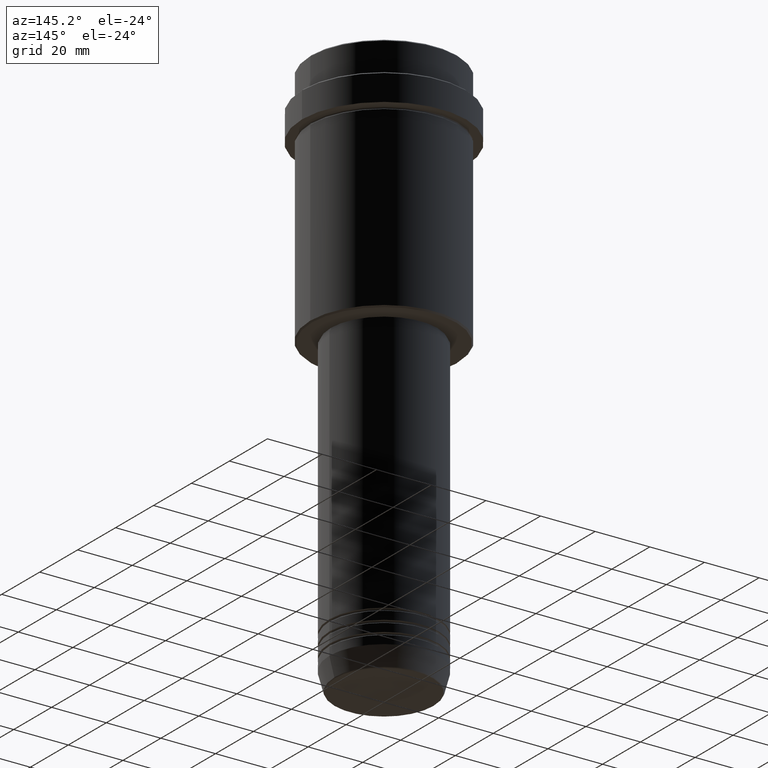
[diagram: clean part render]
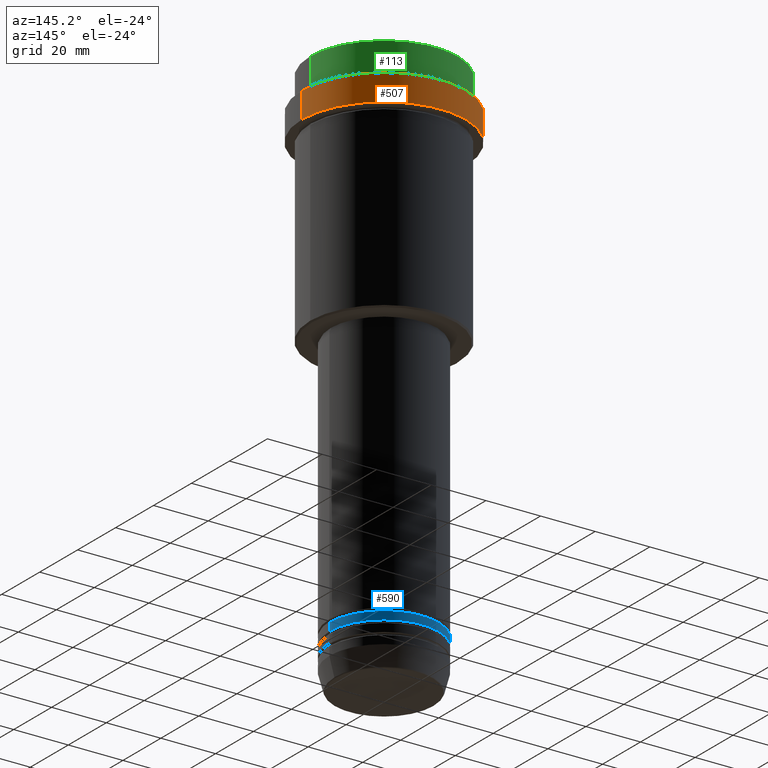
[diagram: same view with three faces highlighted in distinct colors, each labeled with its STEP entity id]
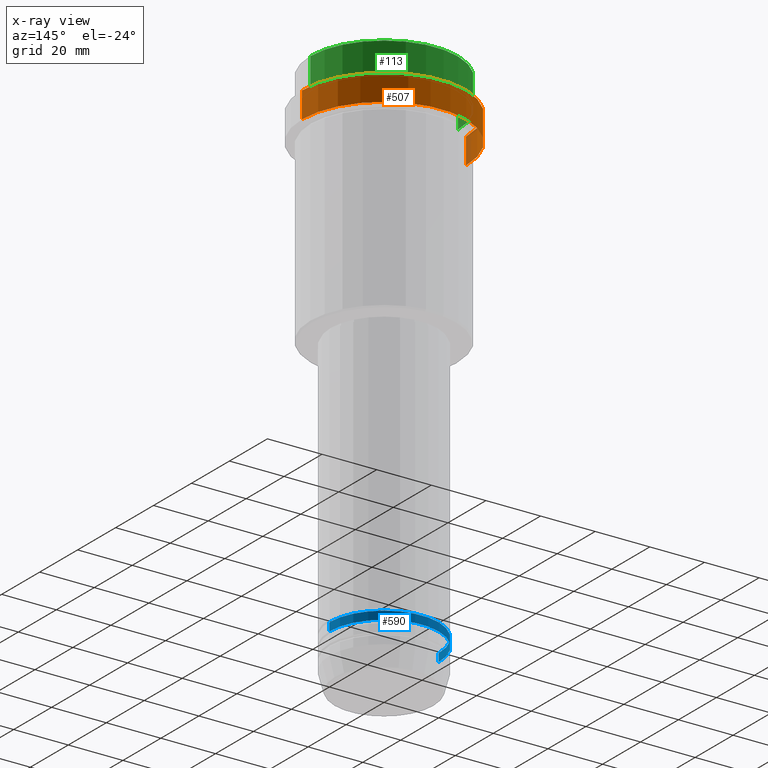
[diagram: x-ray of the same camera — body ghosted, the three highlighted faces saturated]
A machine part, auxiliary view with three faces highlighted in distinct colors.
The next image is the same camera in x-ray (body ghosted, the three faces saturated) — at least one of them is partly hidden behind the body in this view.
Their STEP definitions:

[orange] entity #507 — the highlighted cylindrical surface (partial cylindrical patch) has radius 30 mm, axis along (-0, -0, 1).
#29 = EDGE_LOOP ( 'NONE', ( #716, #1125, #851, #1203 ) ) ;
#59 = CARTESIAN_POINT ( 'NONE',  ( -29.99999999999999645, 3.673940397442058389E-15, -22.00000000000000355 ) ) ;
#82 = FACE_OUTER_BOUND ( 'NONE', #29, .T. ) ;
#84 = VERTEX_POINT ( 'NONE', #572 ) ;
#128 = EDGE_CURVE ( 'NONE', #807, #256, #582, .T. ) ;
#183 = DIRECTION ( 'NONE',  ( -0.000000000000000000, -0.000000000000000000, 1.000000000000000000 ) ) ;
#256 = VERTEX_POINT ( 'NONE', #706 ) ;
#297 = CARTESIAN_POINT ( 'NONE',  ( -30.00000000000000000, 3.673940397442059178E-15, 0.000000000000000000 ) ) ;
#302 = DIRECTION ( 'NONE',  ( -0.000000000000000000, -0.000000000000000000, 1.000000000000000000 ) ) ;
#411 = CYLINDRICAL_SURFACE ( 'NONE', #1193, 30.00000000000000000 ) ;
#422 = EDGE_CURVE ( 'NONE', #84, #256, #1054, .T. ) ;
#469 = VECTOR ( 'NONE', #302, 1000.000000000000000 ) ;
#507 = ADVANCED_FACE ( 'NONE', ( #82 ), #411, .T. ) ;
#556 = DIRECTION ( 'NONE',  ( 0.000000000000000000, 0.000000000000000000, -1.000000000000000000 ) ) ;
#563 = DIRECTION ( 'NONE',  ( 1.000000000000000000, 0.000000000000000000, 0.000000000000000000 ) ) ;
#571 = DIRECTION ( 'NONE',  ( -0.000000000000000000, -0.000000000000000000, 1.000000000000000000 ) ) ;
#572 = CARTESIAN_POINT ( 'NONE',  ( 29.99999999999999645, 0.000000000000000000, -22.00000000000000355 ) ) ;
#582 = CIRCLE ( 'NONE', #1172, 30.00000000000000000 ) ;
#633 = CIRCLE ( 'NONE', #929, 29.99999999999999645 ) ;
#642 = CARTESIAN_POINT ( 'NONE',  ( 0.000000000000000000, 0.000000000000000000, -22.00000000000000355 ) ) ;
#666 = CARTESIAN_POINT ( 'NONE',  ( 0.000000000000000000, 0.000000000000000000, -12.50000000000003730 ) ) ;
#694 = VERTEX_POINT ( 'NONE', #59 ) ;
#706 = CARTESIAN_POINT ( 'NONE',  ( 30.00000000000000000, 0.000000000000000000, -12.50000000000003730 ) ) ;
#716 = ORIENTED_EDGE ( 'NONE', *, *, #790, .T. ) ;
#744 = VECTOR ( 'NONE', #183, 1000.000000000000000 ) ;
#790 = EDGE_CURVE ( 'NONE', #84, #694, #633, .T. ) ;
#807 = VERTEX_POINT ( 'NONE', #1372 ) ;
#851 = ORIENTED_EDGE ( 'NONE', *, *, #128, .T. ) ;
#894 = CARTESIAN_POINT ( 'NONE',  ( 0.000000000000000000, 0.000000000000000000, 0.000000000000000000 ) ) ;
#901 = EDGE_CURVE ( 'NONE', #694, #807, #1053, .T. ) ;
#929 = AXIS2_PLACEMENT_3D ( 'NONE', #642, #1080, #1390 ) ;
#1053 = LINE ( 'NONE', #297, #469 ) ;
#1054 = LINE ( 'NONE', #1288, #744 ) ;
#1080 = DIRECTION ( 'NONE',  ( -0.000000000000000000, -0.000000000000000000, 1.000000000000000000 ) ) ;
#1125 = ORIENTED_EDGE ( 'NONE', *, *, #901, .T. ) ;
#1172 = AXIS2_PLACEMENT_3D ( 'NONE', #666, #556, #563 ) ;
#1193 = AXIS2_PLACEMENT_3D ( 'NONE', #894, #571, #1319 ) ;
#1203 = ORIENTED_EDGE ( 'NONE', *, *, #422, .F. ) ;
#1288 = CARTESIAN_POINT ( 'NONE',  ( 30.00000000000000000, 0.000000000000000000, 0.000000000000000000 ) ) ;
#1319 = DIRECTION ( 'NONE',  ( 1.000000000000000000, 0.000000000000000000, 0.000000000000000000 ) ) ;
#1372 = CARTESIAN_POINT ( 'NONE',  ( -30.00000000000000000, 3.673940397442059178E-15, -12.50000000000003730 ) ) ;
#1390 = DIRECTION ( 'NONE',  ( 1.000000000000000000, 0.000000000000000000, 0.000000000000000000 ) ) ;

[blue] entity #590 — the highlighted cylindrical surface (partial cylindrical patch) has radius 20 mm, axis along (-0, -0, 1).
#30 = DIRECTION ( 'NONE',  ( -0.000000000000000000, -0.000000000000000000, 1.000000000000000000 ) ) ;
#55 = ORIENTED_EDGE ( 'NONE', *, *, #268, .T. ) ;
#107 = ORIENTED_EDGE ( 'NONE', *, *, #714, .F. ) ;
#111 = FACE_OUTER_BOUND ( 'NONE', #1328, .T. ) ;
#147 = CARTESIAN_POINT ( 'NONE',  ( -20.00000000000000000, 2.449293598294706513E-15, -187.9999999999998863 ) ) ;
#210 = CARTESIAN_POINT ( 'NONE',  ( -20.00000000000000000, 2.449293598294706513E-15, 0.000000000000000000 ) ) ;
#224 = ORIENTED_EDGE ( 'NONE', *, *, #614, .T. ) ;
#233 = CARTESIAN_POINT ( 'NONE',  ( 0.000000000000000000, 0.000000000000000000, 0.000000000000000000 ) ) ;
#244 = DIRECTION ( 'NONE',  ( 1.000000000000000000, 0.000000000000000000, 0.000000000000000000 ) ) ;
#268 = EDGE_CURVE ( 'NONE', #1340, #1226, #1086, .T. ) ;
#295 = VERTEX_POINT ( 'NONE', #1141 ) ;
#370 = CARTESIAN_POINT ( 'NONE',  ( 0.000000000000000000, 0.000000000000000000, -187.9999999999998863 ) ) ;
#436 = CARTESIAN_POINT ( 'NONE',  ( -20.00000000000000000, 2.449293598294706513E-15, -184.9999999999998863 ) ) ;
#439 = LINE ( 'NONE', #210, #909 ) ;
#473 = DIRECTION ( 'NONE',  ( 1.000000000000000000, 0.000000000000000000, 0.000000000000000000 ) ) ;
#555 = CYLINDRICAL_SURFACE ( 'NONE', #1175, 20.00000000000000000 ) ;
#581 = CARTESIAN_POINT ( 'NONE',  ( 0.000000000000000000, 0.000000000000000000, -184.9999999999998863 ) ) ;
#588 = CIRCLE ( 'NONE', #1064, 20.00000000000000000 ) ;
#590 = ADVANCED_FACE ( 'NONE', ( #111 ), #555, .T. ) ;
#614 = EDGE_CURVE ( 'NONE', #1226, #1051, #439, .T. ) ;
#632 = AXIS2_PLACEMENT_3D ( 'NONE', #370, #718, #1350 ) ;
#714 = EDGE_CURVE ( 'NONE', #1340, #295, #939, .T. ) ;
#718 = DIRECTION ( 'NONE',  ( -0.000000000000000000, -0.000000000000000000, 1.000000000000000000 ) ) ;
#733 = EDGE_CURVE ( 'NONE', #295, #1051, #588, .T. ) ;
#743 = CARTESIAN_POINT ( 'NONE',  ( 20.00000000000000000, 0.000000000000000000, -187.9999999999998863 ) ) ;
#771 = DIRECTION ( 'NONE',  ( -0.000000000000000000, -0.000000000000000000, 1.000000000000000000 ) ) ;
#803 = DIRECTION ( 'NONE',  ( -0.000000000000000000, -0.000000000000000000, 1.000000000000000000 ) ) ;
#906 = DIRECTION ( 'NONE',  ( -0.000000000000000000, -0.000000000000000000, 1.000000000000000000 ) ) ;
#909 = VECTOR ( 'NONE', #771, 1000.000000000000000 ) ;
#939 = LINE ( 'NONE', #1132, #1196 ) ;
#1011 = ORIENTED_EDGE ( 'NONE', *, *, #733, .F. ) ;
#1051 = VERTEX_POINT ( 'NONE', #436 ) ;
#1064 = AXIS2_PLACEMENT_3D ( 'NONE', #581, #30, #473 ) ;
#1086 = CIRCLE ( 'NONE', #632, 20.00000000000000000 ) ;
#1132 = CARTESIAN_POINT ( 'NONE',  ( 20.00000000000000000, 0.000000000000000000, 0.000000000000000000 ) ) ;
#1141 = CARTESIAN_POINT ( 'NONE',  ( 20.00000000000000000, 0.000000000000000000, -184.9999999999998863 ) ) ;
#1175 = AXIS2_PLACEMENT_3D ( 'NONE', #233, #906, #244 ) ;
#1196 = VECTOR ( 'NONE', #803, 1000.000000000000000 ) ;
#1226 = VERTEX_POINT ( 'NONE', #147 ) ;
#1328 = EDGE_LOOP ( 'NONE', ( #55, #224, #1011, #107 ) ) ;
#1340 = VERTEX_POINT ( 'NONE', #743 ) ;
#1350 = DIRECTION ( 'NONE',  ( 1.000000000000000000, 0.000000000000000000, 0.000000000000000000 ) ) ;

[green] entity #113 — the highlighted cylindrical surface (partial cylindrical patch) has radius 27 mm, axis along (-0, -0, 1).
#21 = DIRECTION ( 'NONE',  ( -0.000000000000000000, -0.000000000000000000, 1.000000000000000000 ) ) ;
#71 = CIRCLE ( 'NONE', #540, 26.99999999999999645 ) ;
#113 = ADVANCED_FACE ( 'NONE', ( #992 ), #774, .T. ) ;
#185 = EDGE_CURVE ( 'NONE', #504, #459, #577, .T. ) ;
#255 = CARTESIAN_POINT ( 'NONE',  ( -26.99999999999999645, 3.306546357697853339E-15, -0.5000000000000038858 ) ) ;
#278 = EDGE_LOOP ( 'NONE', ( #750, #1163, #356, #1034 ) ) ;
#334 = DIRECTION ( 'NONE',  ( 0.000000000000000000, 0.000000000000000000, -1.000000000000000000 ) ) ;
#336 = DIRECTION ( 'NONE',  ( 1.000000000000000000, 0.000000000000000000, 0.000000000000000000 ) ) ;
#356 = ORIENTED_EDGE ( 'NONE', *, *, #1056, .T. ) ;
#366 = VERTEX_POINT ( 'NONE', #644 ) ;
#401 = AXIS2_PLACEMENT_3D ( 'NONE', #883, #334, #652 ) ;
#459 = VERTEX_POINT ( 'NONE', #519 ) ;
#464 = DIRECTION ( 'NONE',  ( -0.000000000000000000, -0.000000000000000000, 1.000000000000000000 ) ) ;
#504 = VERTEX_POINT ( 'NONE', #738 ) ;
#519 = CARTESIAN_POINT ( 'NONE',  ( 26.99999999999999645, 0.000000000000000000, -0.5000000000000038858 ) ) ;
#540 = AXIS2_PLACEMENT_3D ( 'NONE', #549, #21, #786 ) ;
#547 = EDGE_CURVE ( 'NONE', #504, #366, #71, .T. ) ;
#549 = CARTESIAN_POINT ( 'NONE',  ( 0.000000000000000000, 0.000000000000000000, -11.00000000000000178 ) ) ;
#577 = LINE ( 'NONE', #1014, #1017 ) ;
#586 = VECTOR ( 'NONE', #1140, 1000.000000000000000 ) ;
#644 = CARTESIAN_POINT ( 'NONE',  ( -26.99999999999999645, 3.306546357697853339E-15, -11.00000000000000178 ) ) ;
#652 = DIRECTION ( 'NONE',  ( 1.000000000000000000, 0.000000000000000000, 0.000000000000000000 ) ) ;
#705 = CARTESIAN_POINT ( 'NONE',  ( -26.99999999999999645, 3.306546357697853339E-15, 0.000000000000000000 ) ) ;
#738 = CARTESIAN_POINT ( 'NONE',  ( 26.99999999999999645, 0.000000000000000000, -11.00000000000000178 ) ) ;
#742 = EDGE_CURVE ( 'NONE', #366, #1198, #921, .T. ) ;
#750 = ORIENTED_EDGE ( 'NONE', *, *, #547, .T. ) ;
#774 = CYLINDRICAL_SURFACE ( 'NONE', #881, 26.99999999999999645 ) ;
#786 = DIRECTION ( 'NONE',  ( 1.000000000000000000, 0.000000000000000000, 0.000000000000000000 ) ) ;
#881 = AXIS2_PLACEMENT_3D ( 'NONE', #1099, #1327, #336 ) ;
#883 = CARTESIAN_POINT ( 'NONE',  ( 0.000000000000000000, 0.000000000000000000, -0.5000000000000038858 ) ) ;
#921 = LINE ( 'NONE', #705, #586 ) ;
#992 = FACE_OUTER_BOUND ( 'NONE', #278, .T. ) ;
#1014 = CARTESIAN_POINT ( 'NONE',  ( 26.99999999999999645, 0.000000000000000000, 0.000000000000000000 ) ) ;
#1017 = VECTOR ( 'NONE', #464, 1000.000000000000000 ) ;
#1024 = CIRCLE ( 'NONE', #401, 26.99999999999999645 ) ;
#1034 = ORIENTED_EDGE ( 'NONE', *, *, #185, .F. ) ;
#1056 = EDGE_CURVE ( 'NONE', #1198, #459, #1024, .T. ) ;
#1099 = CARTESIAN_POINT ( 'NONE',  ( 0.000000000000000000, 0.000000000000000000, 0.000000000000000000 ) ) ;
#1140 = DIRECTION ( 'NONE',  ( -0.000000000000000000, -0.000000000000000000, 1.000000000000000000 ) ) ;
#1163 = ORIENTED_EDGE ( 'NONE', *, *, #742, .T. ) ;
#1198 = VERTEX_POINT ( 'NONE', #255 ) ;
#1327 = DIRECTION ( 'NONE',  ( -0.000000000000000000, -0.000000000000000000, 1.000000000000000000 ) ) ;